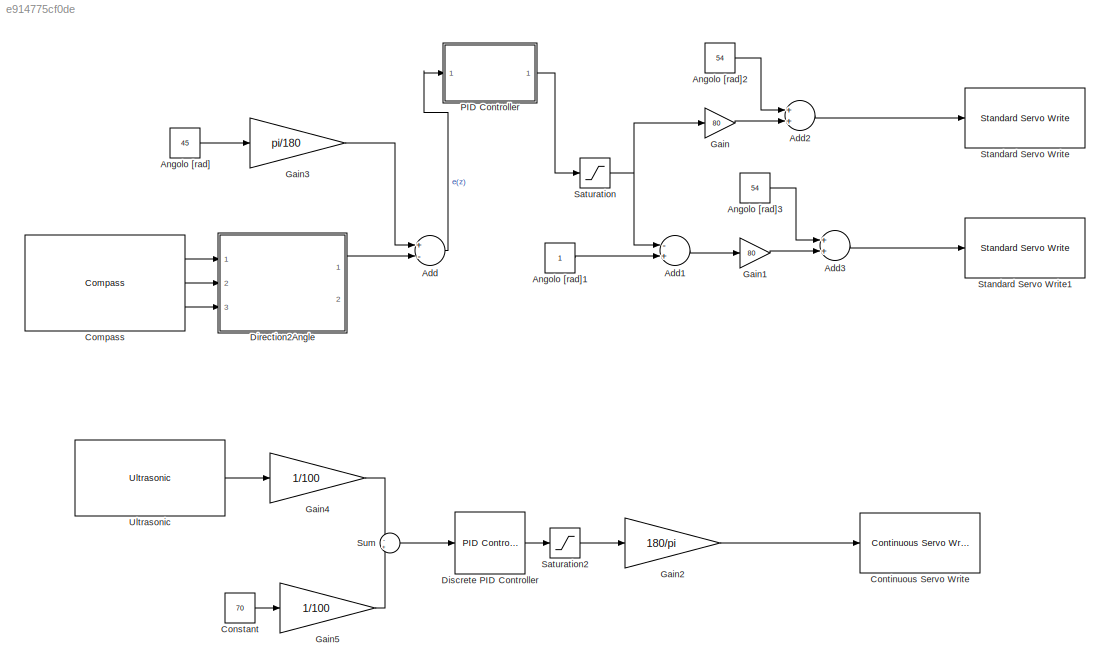
MODEL slx_e914775cf0de
KIND model
BLOCK [Sum] Add
  InputSameDT = off
  Inputs = +-
  OutDataTypeStr = Inherit: Inherit via internal rule
  Ports = [2, 1]
  SaturateOnIntegerOverflow = off
BLOCK [Sum] Add1
  InputSameDT = off
  Inputs = -+
  OutDataTypeStr = Inherit: Inherit via internal rule
  Ports = [2, 1]
  SaturateOnIntegerOverflow = off
BLOCK [Sum] Add2
  InputSameDT = off
  OutDataTypeStr = Inherit: Inherit via internal rule
  Ports = [2, 1]
  SaturateOnIntegerOverflow = off
BLOCK [Sum] Add3
  InputSameDT = off
  OutDataTypeStr = Inherit: Inherit via internal rule
  Ports = [2, 1]
  SaturateOnIntegerOverflow = off
BLOCK [Constant] Angolo [rad]
  Value = 45
BLOCK [Constant] Angolo [rad]1
BLOCK [Constant] Angolo [rad]2
  Value = 54
BLOCK [Constant] Angolo [rad]3
  Value = 54
BLOCK [Reference] Compass  REF=SkywardBLIMP/Compass
  Ports = [0, 3]
  SourceBlock = SkywardBLIMP/Compass
  SourceType = Compass
BLOCK [Constant] Constant
  Value = 70
BLOCK [Reference] Continuous Servo Write  REF=arduinolib/Continuous Servo Write
  Ports = [1]
  SourceBlock = arduinolib/Continuous Servo Write
  SourceType = Arduino Continuous Servo Write
  pinNumber = 5
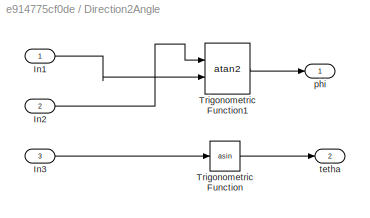
BLOCK [SubSystem] Direction2Angle
  Ports = [3, 2]
  RequestExecContextInheritance = off
BLOCK [Inport] Direction2Angle/In1
  IconDisplay = Port number
BLOCK [Inport] Direction2Angle/In2
  IconDisplay = Port number
  Port = 2
BLOCK [Inport] Direction2Angle/In3
  IconDisplay = Port number
  Port = 3
BLOCK [Trigonometry] Direction2Angle/Trigonometric Function
  Operator = asin
  Ports = [1, 1]
BLOCK [Trigonometry] Direction2Angle/Trigonometric Function1
  Operator = atan2
  Ports = [2, 1]
BLOCK [Outport] Direction2Angle/phi
  IconDisplay = Port number
BLOCK [Outport] Direction2Angle/tetha
  IconDisplay = Port number
  Port = 2
BLOCK [Reference] Discrete PID Controller  REF=simulink/Continuous/PID Controller
  AntiWindupMode = none
  Controller = PID
  D = 2
  DOutDataTypeStr = Inherit: Inherit via internal rule
  DOutMax = []
  DOutMin = []
  DParamDataTypeStr = Inherit: Inherit via internal rule
  DParamMax = []
  DParamMin = []
  ExternalReset = none
  FilterContinuousStateAttributes = ''
  FilterMethod = Forward Euler
  FilterOutDataTypeStr = Inherit: Inherit via internal rule
  FilterOutMax = []
  FilterOutMin = []
  FilterRTWStateStorageClass = Auto
  FilterStateMustResolveToSignalObject = off
  Form = Parallel
  I = 0.1
  IOutDataTypeStr = Inherit: Inherit via internal rule
  IOutMax = []
  IOutMin = []
  IParamDataTypeStr = Inherit: Inherit via internal rule
  IParamMax = []
  IParamMin = []
  IgnoreLimit = off
  InitialConditionForFilter = 0
  InitialConditionForIntegrator = 0
  InitialConditionSource = internal
  IntegratorContinuousStateAttributes = ''
  IntegratorMethod = Trapezoidal
  IntegratorOutDataTypeStr = Inherit: Inherit via internal rule
  IntegratorOutMax = []
  IntegratorOutMin = []
  IntegratorRTWStateStorageClass = Auto
  IntegratorStateMustResolveToSignalObject = off
  Kb = 1
  KbOutDataTypeStr = Inherit: Inherit via internal rule
  KbOutMax = []
  KbOutMin = []
  KbParamDataTypeStr = Inherit: Inherit via internal rule
  KbParamMax = []
  KbParamMin = []
  Kt = 1
  KtOutDataTypeStr = Inherit: Inherit via internal rule
  KtOutMax = []
  KtOutMin = []
  KtParamDataTypeStr = Inherit: Inherit via internal rule
  KtParamMax = []
  KtParamMin = []
  LimitOutput = off
  LinearizeAsGain = off
  LockScale = off
  LowerSaturationLimit = -inf
  N = 0
  NOutDataTypeStr = Inherit: Inherit via internal rule
  NOutMax = []
  NOutMin = []
  NParamDataTypeStr = Inherit: Inherit via internal rule
  NParamMax = []
  NParamMin = []
  P = 1.2
  POutDataTypeStr = Inherit: Inherit via internal rule
  POutMax = []
  POutMin = []
  PParamDataTypeStr = Inherit: Inherit via internal rule
  PParamMax = []
  PParamMin = []
  Ports = [1, 1]
  RndMeth = Floor
  SampleTime = 0.1
  SaturateOnIntegerOverflow = off
  SaturationOutDataTypeStr = Inherit: Same as input
  SaturationOutMax = []
  SaturationOutMin = []
  SourceBlock = simulink/Continuous/PID Controller
  SourceType = PID 1dof
  SumAccumDataTypeStr = Inherit: Inherit via internal rule
  SumDAccumDataTypeStr = Inherit: Inherit via internal rule
  SumDOutDataTypeStr = Inherit: Inherit via internal rule
  SumDOutMax = []
  SumDOutMin = []
  SumI1AccumDataTypeStr = Inherit: Inherit via internal rule
  SumI1OutDataTypeStr = Inherit: Inherit via internal rule
  SumI1OutMax = []
  SumI1OutMin = []
  SumI2AccumDataTypeStr = Inherit: Inherit via internal rule
  SumI2OutDataTypeStr = Inherit: Inherit via internal rule
  SumI2OutMax = []
  SumI2OutMin = []
  SumI3AccumDataTypeStr = Inherit: Inherit via internal rule
  SumI3OutDataTypeStr = Inherit: Inherit via internal rule
  SumI3OutMax = []
  SumI3OutMin = []
  SumOutDataTypeStr = Inherit: Inherit via internal rule
  SumOutMax = []
  SumOutMin = []
  TimeDomain = Discrete-time
  TrackingMode = off
  UpperSaturationLimit = inf
  ZeroCross = on
BLOCK [Gain] Gain
  Gain = 80
  OutDataTypeStr = Inherit: Inherit via internal rule
  ParamDataTypeStr = Inherit: Inherit via internal rule
  SaturateOnIntegerOverflow = off
BLOCK [Gain] Gain1
  Gain = 80
  OutDataTypeStr = Inherit: Inherit via internal rule
  ParamDataTypeStr = Inherit: Inherit via internal rule
  SaturateOnIntegerOverflow = off
BLOCK [Gain] Gain2
  Gain = 180/pi
  OutDataTypeStr = Inherit: Inherit via internal rule
  ParamDataTypeStr = Inherit: Inherit via internal rule
  SampleTime = 0.1
  SaturateOnIntegerOverflow = off
BLOCK [Gain] Gain3
  Gain = pi/180
  OutDataTypeStr = Inherit: Inherit via internal rule
  ParamDataTypeStr = Inherit: Inherit via internal rule
  SampleTime = 0.1
  SaturateOnIntegerOverflow = off
BLOCK [Gain] Gain4
  Gain = 1/100
  OutDataTypeStr = Inherit: Inherit via internal rule
  ParamDataTypeStr = Inherit: Inherit via internal rule
  SampleTime = 0.1
  SaturateOnIntegerOverflow = off
BLOCK [Gain] Gain5
  Gain = 1/100
  OutDataTypeStr = Inherit: Inherit via internal rule
  ParamDataTypeStr = Inherit: Inherit via internal rule
  SampleTime = 0.1
  SaturateOnIntegerOverflow = off
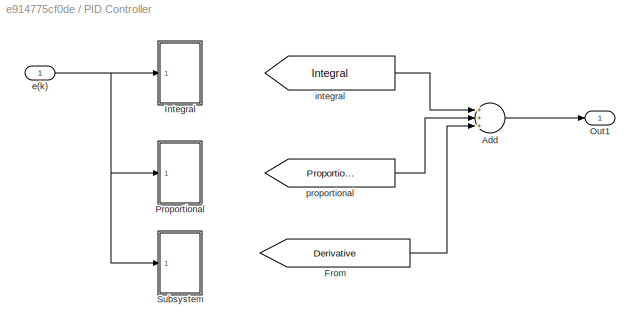
BLOCK [SubSystem] PID Controller
  Ports = [1, 1]
  RequestExecContextInheritance = off
BLOCK [Sum] PID Controller/Add
  InputSameDT = off
  Inputs = +++
  OutDataTypeStr = Inherit: Inherit via internal rule
  Ports = [3, 1]
  SaturateOnIntegerOverflow = off
BLOCK [From] PID Controller/From
  GotoTag = Derivative
  TagVisibility = global
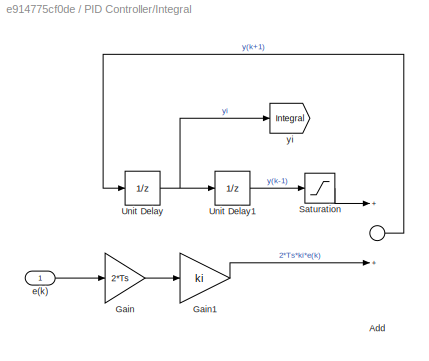
BLOCK [SubSystem] PID Controller/Integral
  Ports = [1]
  RequestExecContextInheritance = off
BLOCK [Sum] PID Controller/Integral/Add
  InputSameDT = off
  OutDataTypeStr = Inherit: Inherit via internal rule
  Ports = [2, 1]
  SaturateOnIntegerOverflow = off
BLOCK [Gain] PID Controller/Integral/Gain
  Gain = 2*Ts
  OutDataTypeStr = Inherit: Inherit via internal rule
  ParamDataTypeStr = Inherit: Inherit via internal rule
  SaturateOnIntegerOverflow = off
BLOCK [Gain] PID Controller/Integral/Gain1
  Gain = ki
  OutDataTypeStr = Inherit: Inherit via internal rule
  ParamDataTypeStr = Inherit: Inherit via internal rule
  SaturateOnIntegerOverflow = off
BLOCK [Saturate] PID Controller/Integral/Saturation
  AttributesFormatString = %<LowerLimit>\n%<UpperLimit>
  InputPortMap = u0
  LowerLimit = -1
  Ports = [1, 1]
  UpperLimit = 1
BLOCK [UnitDelay] PID Controller/Integral/Unit Delay
  InputProcessing = Elements as channels (sample based)
  SampleTime = Ts
BLOCK [UnitDelay] PID Controller/Integral/Unit Delay1
  InputProcessing = Elements as channels (sample based)
  SampleTime = Ts
BLOCK [Inport] PID Controller/Integral/e(k)
  IconDisplay = Port number
BLOCK [Goto] PID Controller/Integral/yi
  GotoTag = Integral
  TagVisibility = global
BLOCK [Outport] PID Controller/Out1
  IconDisplay = Port number
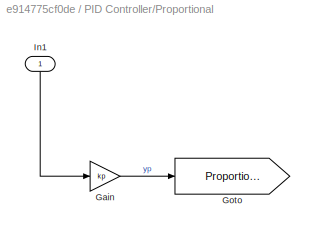
BLOCK [SubSystem] PID Controller/Proportional
  Ports = [1]
  RequestExecContextInheritance = off
BLOCK [Gain] PID Controller/Proportional/Gain
  Gain = kp
  OutDataTypeStr = Inherit: Inherit via internal rule
  ParamDataTypeStr = Inherit: Inherit via internal rule
  SaturateOnIntegerOverflow = off
BLOCK [Goto] PID Controller/Proportional/Goto
  GotoTag = Proportional
  TagVisibility = global
BLOCK [Inport] PID Controller/Proportional/In1
  IconDisplay = Port number
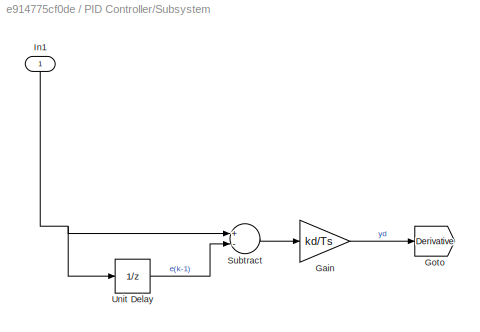
BLOCK [SubSystem] PID Controller/Subsystem
  Ports = [1]
  RequestExecContextInheritance = off
BLOCK [Gain] PID Controller/Subsystem/Gain
  Gain = kd/Ts
  OutDataTypeStr = Inherit: Inherit via internal rule
  ParamDataTypeStr = Inherit: Inherit via internal rule
  SaturateOnIntegerOverflow = off
BLOCK [Goto] PID Controller/Subsystem/Goto
  GotoTag = Derivative
  TagVisibility = global
BLOCK [Inport] PID Controller/Subsystem/In1
  IconDisplay = Port number
BLOCK [Sum] PID Controller/Subsystem/Subtract
  InputSameDT = off
  Inputs = +-
  OutDataTypeStr = Inherit: Inherit via internal rule
  Ports = [2, 1]
  SaturateOnIntegerOverflow = off
BLOCK [UnitDelay] PID Controller/Subsystem/Unit Delay
  InputProcessing = Elements as channels (sample based)
  SampleTime = -1
BLOCK [Inport] PID Controller/e(k)
  IconDisplay = Port number
BLOCK [From] PID Controller/integral
  GotoTag = Integral
  TagVisibility = global
BLOCK [From] PID Controller/proportional
  GotoTag = Proportional
  TagVisibility = global
BLOCK [Saturate] Saturation
  InputPortMap = u0
  LowerLimit = 0
  Ports = [1, 1]
  UpperLimit = 1
BLOCK [Saturate] Saturation2
  InputPortMap = u0
  LowerLimit = -0.3
  Ports = [1, 1]
  UpperLimit = 0.3
BLOCK [Reference] Standard Servo Write  REF=arduinolib/Standard Servo Write
  Ports = [1]
  SourceBlock = arduinolib/Standard Servo Write
  SourceType = Arduino Standard Servo Write
  pinNumber = 7
BLOCK [Reference] Standard Servo Write1  REF=arduinolib/Standard Servo Write
  Ports = [1]
  SourceBlock = arduinolib/Standard Servo Write
  SourceType = Arduino Standard Servo Write
  pinNumber = 4
BLOCK [Sum] Sum
  IconShape = round
  InputSameDT = off
  Inputs = -+
  OutDataTypeStr = Inherit: Inherit via internal rule
  Ports = [2, 1]
  SaturateOnIntegerOverflow = off
BLOCK [Reference] Ultrasonic  REF=SkywardBLIMP/Ultrasonic
  Ports = [0, 1]
  SourceBlock = SkywardBLIMP/Ultrasonic
  SourceType = Ultrasonic
LINE Add1:1 -> Gain1:1
LINE Add2:1 -> Standard Servo Write:1
LINE Add3:1 -> Standard Servo Write1:1
LINE Add:1 -> PID Controller:1
LINE Angolo [rad]1:1 -> Add1:2
LINE Angolo [rad]2:1 -> Add2:1
LINE Angolo [rad]3:1 -> Add3:1
LINE Angolo [rad]:1 -> Gain3:1
LINE Compass:1 -> Direction2Angle:1
LINE Compass:2 -> Direction2Angle:2
LINE Compass:3 -> Direction2Angle:3
LINE Constant:1 -> Gain5:1
LINE Direction2Angle/In1:1 -> Direction2Angle/Trigonometric Function1:2
LINE Direction2Angle/In2:1 -> Direction2Angle/Trigonometric Function1:1
LINE Direction2Angle/In3:1 -> Direction2Angle/Trigonometric Function:1
LINE Direction2Angle/Trigonometric Function1:1 -> Direction2Angle/phi:1
LINE Direction2Angle/Trigonometric Function:1 -> Direction2Angle/tetha:1
LINE Direction2Angle:1 -> Add:2
LINE Discrete PID Controller:1 -> Saturation2:1
LINE Gain1:1 -> Add3:2
LINE Gain2:1 -> Continuous Servo Write:1
LINE Gain3:1 -> Add:1
LINE Gain4:1 -> Sum:1
LINE Gain5:1 -> Sum:2
LINE Gain:1 -> Add2:2
LINE PID Controller/Add:1 -> PID Controller/Out1:1
LINE PID Controller/From:1 -> PID Controller/Add:3
LINE PID Controller/Integral/Add:1 -> PID Controller/Integral/Unit Delay:1
LINE PID Controller/Integral/Gain1:1 -> PID Controller/Integral/Add:2
LINE PID Controller/Integral/Gain:1 -> PID Controller/Integral/Gain1:1
LINE PID Controller/Integral/Saturation:1 -> PID Controller/Integral/Add:1
LINE PID Controller/Integral/Unit Delay1:1 -> PID Controller/Integral/Saturation:1
NET PID Controller/Integral/Unit Delay:1 -> PID Controller/Integral/Unit Delay1:1, PID Controller/Integral/yi:1
LINE PID Controller/Integral/e(k):1 -> PID Controller/Integral/Gain:1
LINE PID Controller/Proportional/Gain:1 -> PID Controller/Proportional/Goto:1
LINE PID Controller/Proportional/In1:1 -> PID Controller/Proportional/Gain:1
LINE PID Controller/Subsystem/Gain:1 -> PID Controller/Subsystem/Goto:1
NET PID Controller/Subsystem/In1:1 -> PID Controller/Subsystem/Subtract:1, PID Controller/Subsystem/Unit Delay:1
LINE PID Controller/Subsystem/Subtract:1 -> PID Controller/Subsystem/Gain:1
LINE PID Controller/Subsystem/Unit Delay:1 -> PID Controller/Subsystem/Subtract:2
NET PID Controller/e(k):1 -> PID Controller/Integral:1, PID Controller/Proportional:1, PID Controller/Subsystem:1
LINE PID Controller/integral:1 -> PID Controller/Add:1
LINE PID Controller/proportional:1 -> PID Controller/Add:2
LINE PID Controller:1 -> Saturation:1
LINE Saturation2:1 -> Gain2:1
NET Saturation:1 -> Add1:1, Gain:1
LINE Sum:1 -> Discrete PID Controller:1
LINE Ultrasonic:1 -> Gain4:1
note: NET lines group one-source signal fan-out (src -> all destinations, sorted); 1:1 wires keep LINE
